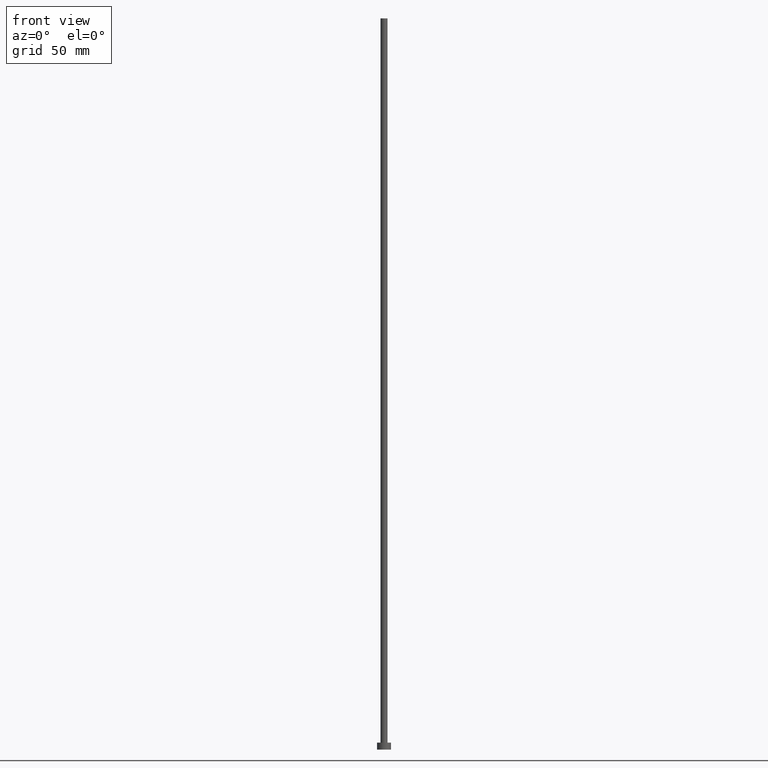
[diagram: clean part render]
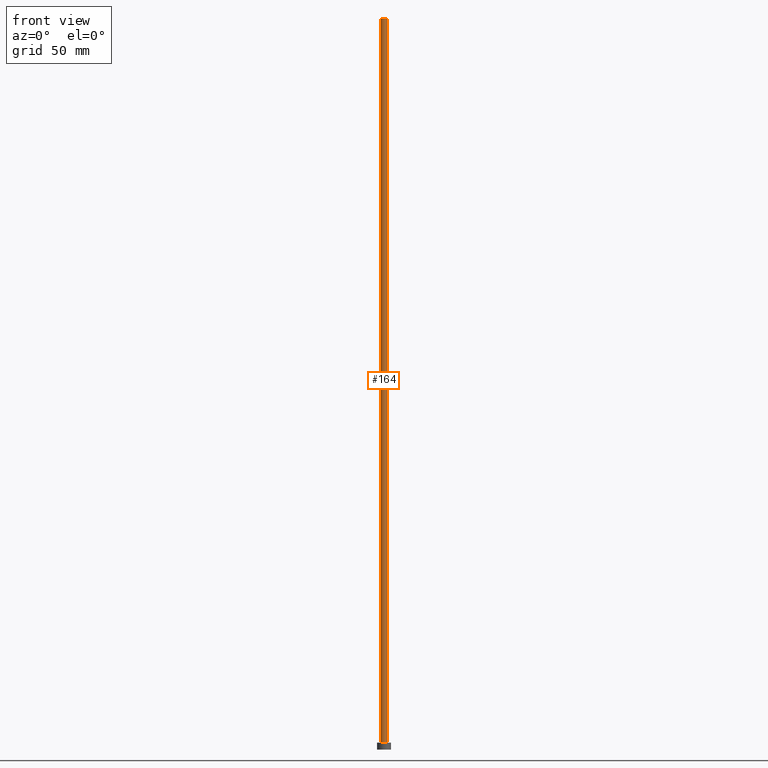
[diagram: same view with one face highlighted and labeled with its STEP entity id]
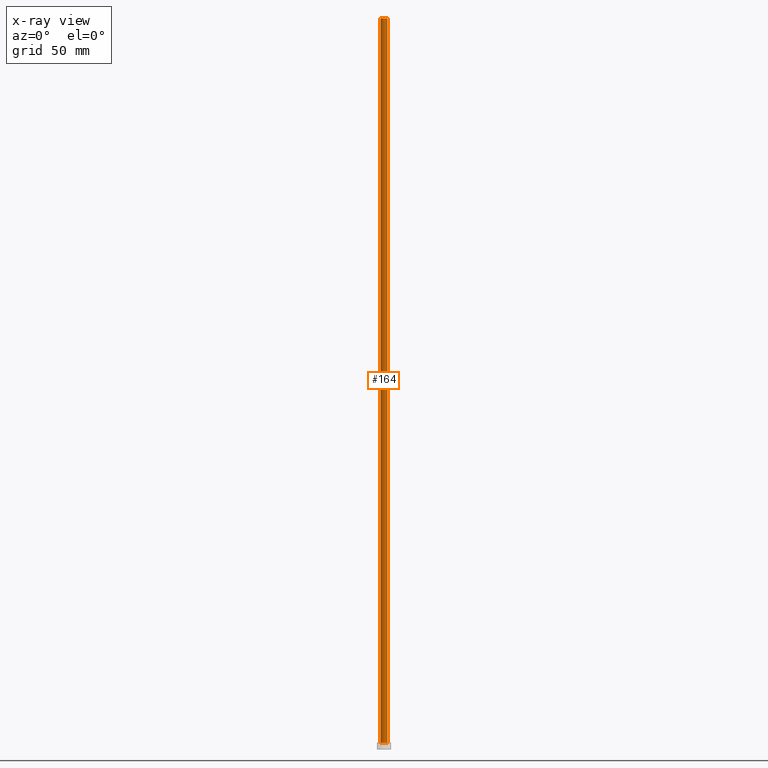
[diagram: x-ray of the same camera — body ghosted, the highlighted face saturated]
A machine part, front view. The second image highlights one B-rep face of the part: STEP entity #164.
The next image is the same camera in x-ray: the body ghosted, the highlighted face saturated — about 0% of this face is hidden behind the body in this view.
In plain terms, the highlighted cylindrical surface (edge-blend (fillet) strip) has radius 1.5 mm, axis along (-0, -0, -1).
Its self-contained STEP definition (entity closure, byte-faithful):
#1 = DIRECTION ( 'NONE',  ( 1.000000000000000000, 0.000000000000000000, 0.000000000000000000 ) ) ;
#3 = DIRECTION ( 'NONE',  ( 0.000000000000000000, 0.000000000000000000, 1.000000000000000000 ) ) ;
#10 = EDGE_CURVE ( 'NONE', #224, #248, #182, .T. ) ;
#12 = AXIS2_PLACEMENT_3D ( 'NONE', #45, #3, #122 ) ;
#24 = VECTOR ( 'NONE', #156, 1000.000000000000000 ) ;
#31 = CYLINDRICAL_SURFACE ( 'NONE', #79, 1.500000000000000222 ) ;
#38 = EDGE_LOOP ( 'NONE', ( #131, #117, #71, #186 ) ) ;
#45 = CARTESIAN_POINT ( 'NONE',  ( 0.000000000000000000, 0.000000000000000000, 315.0000000000000000 ) ) ;
#49 = EDGE_CURVE ( 'NONE', #173, #72, #56, .T. ) ;
#56 = CIRCLE ( 'NONE', #12, 1.500000000000000222 ) ;
#59 = DIRECTION ( 'NONE',  ( -1.000000000000000000, 0.000000000000000000, 0.000000000000000000 ) ) ;
#61 = CARTESIAN_POINT ( 'NONE',  ( -1.500000000000000222, 0.000000000000000000, 315.0000000000000000 ) ) ;
#67 = AXIS2_PLACEMENT_3D ( 'NONE', #109, #175, #1 ) ;
#71 = ORIENTED_EDGE ( 'NONE', *, *, #246, .T. ) ;
#72 = VERTEX_POINT ( 'NONE', #168 ) ;
#76 = LINE ( 'NONE', #250, #24 ) ;
#79 = AXIS2_PLACEMENT_3D ( 'NONE', #245, #189, #59 ) ;
#109 = CARTESIAN_POINT ( 'NONE',  ( 0.000000000000000000, 0.000000000000000000, 3.000000000000000000 ) ) ;
#111 = VECTOR ( 'NONE', #232, 1000.000000000000000 ) ;
#117 = ORIENTED_EDGE ( 'NONE', *, *, #49, .F. ) ;
#122 = DIRECTION ( 'NONE',  ( 1.000000000000000000, 0.000000000000000000, 0.000000000000000000 ) ) ;
#131 = ORIENTED_EDGE ( 'NONE', *, *, #176, .F. ) ;
#134 = CARTESIAN_POINT ( 'NONE',  ( -1.500000000000000222, 0.000000000000000000, 3.000000000000000000 ) ) ;
#151 = CARTESIAN_POINT ( 'NONE',  ( 1.500000000000000222, 1.836970198721030181E-16, 3.000000000000000000 ) ) ;
#156 = DIRECTION ( 'NONE',  ( -0.000000000000000000, -0.000000000000000000, -1.000000000000000000 ) ) ;
#164 = ADVANCED_FACE ( 'NONE', ( #201 ), #31, .T. ) ;
#168 = CARTESIAN_POINT ( 'NONE',  ( 1.500000000000000222, 1.836970198721030181E-16, 315.0000000000000000 ) ) ;
#170 = LINE ( 'NONE', #253, #111 ) ;
#173 = VERTEX_POINT ( 'NONE', #61 ) ;
#175 = DIRECTION ( 'NONE',  ( 0.000000000000000000, 0.000000000000000000, 1.000000000000000000 ) ) ;
#176 = EDGE_CURVE ( 'NONE', #72, #248, #170, .T. ) ;
#182 = CIRCLE ( 'NONE', #67, 1.500000000000000222 ) ;
#186 = ORIENTED_EDGE ( 'NONE', *, *, #10, .T. ) ;
#189 = DIRECTION ( 'NONE',  ( -0.000000000000000000, -0.000000000000000000, -1.000000000000000000 ) ) ;
#201 = FACE_OUTER_BOUND ( 'NONE', #38, .T. ) ;
#224 = VERTEX_POINT ( 'NONE', #134 ) ;
#232 = DIRECTION ( 'NONE',  ( -0.000000000000000000, -0.000000000000000000, -1.000000000000000000 ) ) ;
#245 = CARTESIAN_POINT ( 'NONE',  ( 0.000000000000000000, 0.000000000000000000, 315.0000000000000000 ) ) ;
#246 = EDGE_CURVE ( 'NONE', #173, #224, #76, .T. ) ;
#248 = VERTEX_POINT ( 'NONE', #151 ) ;
#250 = CARTESIAN_POINT ( 'NONE',  ( -1.500000000000000222, 0.000000000000000000, 315.0000000000000000 ) ) ;
#253 = CARTESIAN_POINT ( 'NONE',  ( 1.500000000000000222, 1.836970198721030181E-16, 315.0000000000000000 ) ) ;